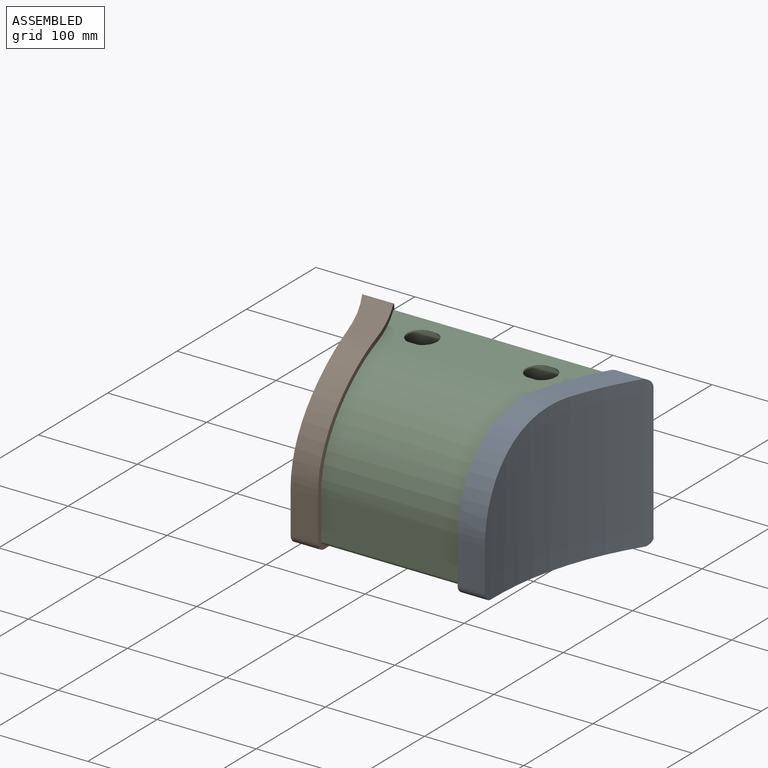
[diagram: assembled view]
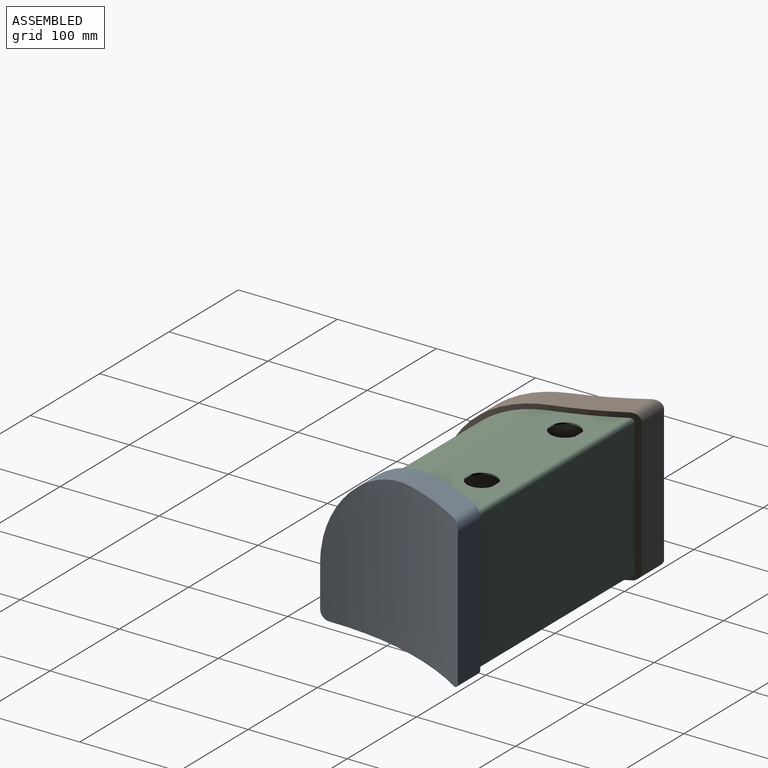
[diagram: assembled view, second angle]
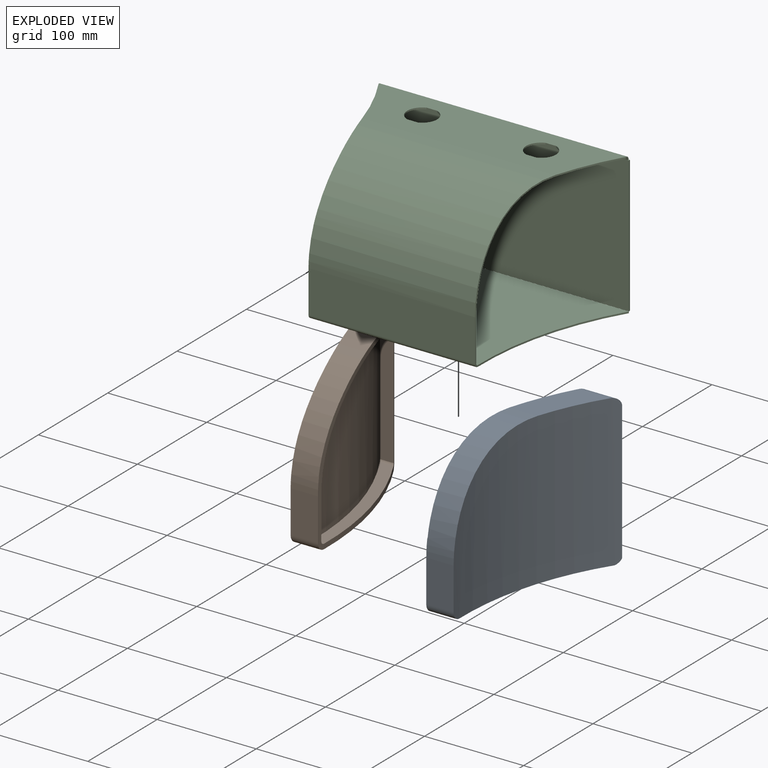
[diagram: exploded view]
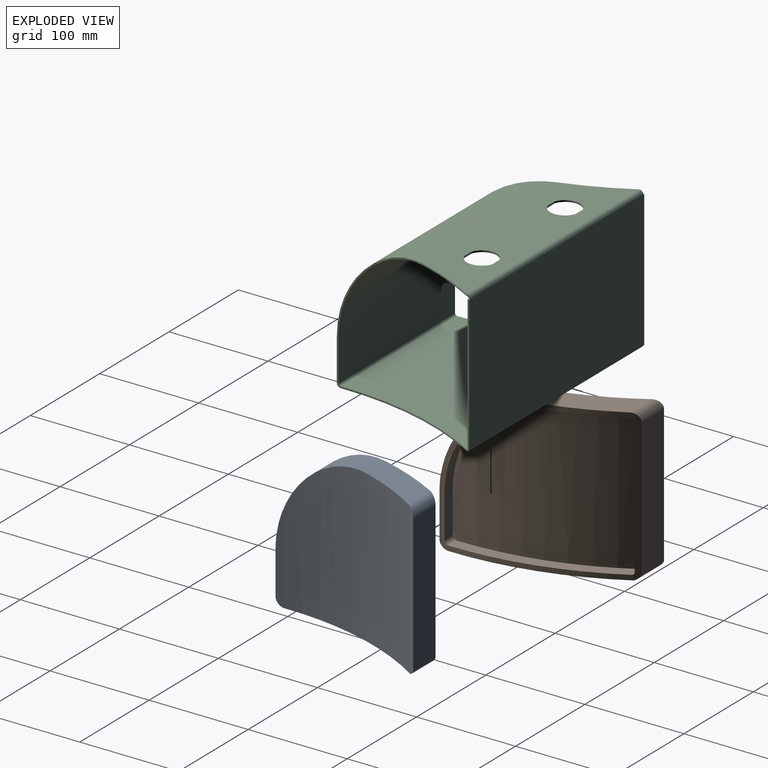
[diagram: exploded view, second angle]
ASSEMBLY  parts=3 mates=2
PART A: 21 faces, bbox 76.5x173.2x153.2 mm
  f0: cylinder r=8.9mm len=37.44mm, axis (1,0,0), area 448.3mm2, adj f11,f15,f19,f20
  f1: cylinder r=101.6mm len=101.6mm, axis (1,0,0), area 4395.6mm2, adj f11,f12,f13,f14,f19,f20
  f2: plane 62.7x40.05mm, normal (0,0,-1), area 820.3mm2, adj f4,f5,f10,f11
  f3: plane 157.68x54.18mm, normal (0,0,1), area 1979.6mm2, adj f6,f7,f10,f11
  f4: cylinder r=96.6mm len=96.6mm, axis (1,0,0), area 1837.1mm2, adj f2,f9,f10,f11
  f5: cylinder r=3.9mm len=16.12mm, axis (1,0,0), area 85mm2, adj f2,f8,f10,f11
  f6: cylinder r=3.9mm len=14.84mm, axis (1,0,0), area 32.3mm2, adj f3,f8,f10,f11
  f7: cylinder r=3.9mm len=12.08mm, axis (1,0,0), area 73.5mm2, adj f3,f9,f10,f11
  f8: plane 137.68x13.92mm, normal (0,-1,0), area 1916.4mm2, adj f5,f6,f10,f11
  f9: plane 42.7x12mm, normal (0,1,0), area 512.6mm2, adj f4,f7,f10,f11
  f10: cylinder r=300mm len=163.2mm, axis (0,0,1), area 22483.7mm2, adj f2,f3,f4,f5,f6,f7,f8,f9
  f11: cylinder r=312mm len=171.73mm, axis (0,0,1), area 3019.5mm2, adj f0,f1,f2,f3,f4,f5,f6,f7
  f12: plane 64.86x0.25mm, normal (0,1,0), area 16.2mm2, adj f1,f11,f14,f18
  f13: plane 42.7x27.6mm, normal (0,-1,0), area 1178.6mm2, adj f1,f14,f18,f20
  f14: plane 64.86x1.48mm, normal (-1,0,0), area 84.9mm2, adj f1,f12,f13,f18
  f15: plane 138.66x32.32mm, normal (0,1,0), area 4482mm2, adj f0,f11,f16,f20
  f16: cylinder r=8.9mm len=35.61mm, axis (1,0,0), area 265.8mm2, adj f11,f15,f17,f20
  f17: plane 158.66x72.75mm, normal (0,0,-1), area 4541.4mm2, adj f11,f16,f18,f20
  f18: cylinder r=8.9mm len=27.6mm, axis (1,0,0), area 382.6mm2, adj f11,f12,f13,f14,f17,f20
  f19: plane 62.7x57.89mm, normal (0,0,1), area 1873.6mm2, adj f0,f1,f11,f20
  f20: cylinder r=284.73mm len=173.2mm, axis (0,0,1), area 25780.6mm2, adj f0,f1,f13,f15,f16,f17,f18,f19
PART B: 21 faces, bbox 76.5x173.2x153.2 mm
  f0: cylinder r=8.9mm len=37.44mm, axis (-1,0,0), area 448.3mm2, adj f11,f15,f19,f20
  f1: cylinder r=101.6mm len=101.6mm, axis (-1,0,0), area 4395.7mm2, adj f11,f12,f13,f14,f19,f20
  f2: plane 62.7x40.05mm, normal (0,0,-1), area 820.3mm2, adj f4,f5,f10,f11
  f3: plane 157.68x54.18mm, normal (0,0,1), area 1979.6mm2, adj f6,f7,f10,f11
  f4: cylinder r=96.6mm len=96.6mm, axis (-1,0,0), area 1837.1mm2, adj f2,f9,f10,f11
  f5: cylinder r=3.9mm len=16.12mm, axis (-1,0,0), area 85mm2, adj f2,f8,f10,f11
  f6: cylinder r=3.9mm len=14.84mm, axis (-1,0,0), area 32.3mm2, adj f3,f8,f10,f11
  f7: cylinder r=3.9mm len=12.08mm, axis (-1,0,0), area 73.5mm2, adj f3,f9,f10,f11
  f8: plane 137.68x13.92mm, normal (0,-1,0), area 1916.4mm2, adj f5,f6,f10,f11
  f9: plane 42.7x12mm, normal (0,1,0), area 512.6mm2, adj f4,f7,f10,f11
  f10: cylinder r=300mm len=163.2mm, axis (0,0,1), area 22483.4mm2, adj f2,f3,f4,f5,f6,f7,f8,f9
  f11: cylinder r=312mm len=171.73mm, axis (0,0,1), area 3019.4mm2, adj f0,f1,f2,f3,f4,f5,f6,f7
  f12: plane 64.86x0.25mm, normal (0,1,0), area 16.2mm2, adj f1,f11,f14,f18
  f13: plane 42.7x27.6mm, normal (0,-1,0), area 1178.6mm2, adj f1,f14,f18,f20
  f14: plane 64.86x1.48mm, normal (1,0,0), area 84.9mm2, adj f1,f12,f13,f18
  f15: plane 138.66x32.32mm, normal (0,1,0), area 4482mm2, adj f0,f11,f16,f20
  f16: cylinder r=8.9mm len=35.61mm, axis (-1,0,0), area 265.8mm2, adj f11,f15,f17,f20
  f17: plane 158.66x72.75mm, normal (0,0,-1), area 4541.4mm2, adj f11,f16,f18,f20
  f18: cylinder r=8.9mm len=27.6mm, axis (-1,0,0), area 382.6mm2, adj f11,f12,f13,f14,f17,f20
  f19: plane 62.7x57.89mm, normal (0,0,1), area 1873.6mm2, adj f0,f1,f11,f20
  f20: cylinder r=284.73mm len=173.2mm, axis (0,0,1), area 25780.9mm2, adj f0,f1,f13,f15,f16,f17,f18,f19
PART C: 44 faces, bbox 252.4x163.2x143.2 mm
  f0: plane 1.6x1.36mm, normal (0,0,1), area 2.2mm2, adj f2,f5,f6,f41
  f1: plane 252.45x1.6mm, normal (0,0,-1), area 403.9mm2, adj f2,f4,f5,f6
  f2: plane 137.68x1.6mm, normal (-1,0,0), area 220.3mm2, adj f0,f1,f5,f6
  f3: plane 1.6x1.36mm, normal (0,0,1), area 2.2mm2, adj f4,f5,f6,f40
  f4: plane 137.68x1.6mm, normal (1,0,0), area 220.3mm2, adj f1,f3,f5,f6
  f5: plane 252.45x137.68mm, normal (0,1,0), area 34757.2mm2, adj f0,f1,f2,f3,f4,f42
  f6: plane 252.45x137.68mm, normal (0,-1,0), area 34757.2mm2, adj f0,f1,f2,f3,f4,f43
  f7: cylinder r=300mm len=157.68mm, axis (0,0,1), area 264.5mm2, adj f8,f10,f11,f37
  f8: plane 252.43x1.6mm, normal (0,1,0), area 403.9mm2, adj f7,f9,f10,f11
  f9: cylinder r=300mm len=157.68mm, axis (0,0,1), area 264.5mm2, adj f8,f10,f11,f36
  f10: plane 252.43x157.68mm, normal (0,0,-1), area 30684.5mm2, adj f7,f8,f9,f38
  f11: plane 252.43x157.68mm, normal (0,0,1), area 30684.5mm2, adj f7,f8,f9,f39
  f12: plane 10.77x1.6mm, normal (0,1,0), area 17.2mm2, adj f13,f21,f22,f23
  f13: cylinder r=15mm len=28mm, axis (0,0,1), area 57.8mm2, adj f12,f14,f22,f23
  f14: plane 10.77x1.6mm, normal (0,-1,0), area 17.2mm2, adj f13,f21,f22,f23
  f15: cylinder r=300mm len=62.7mm, axis (0,0,1), area 109.8mm2, adj f22,f23,f30,f41
  f16: cylinder r=15mm len=28mm, axis (0,0,1), area 57.8mm2, adj f17,f19,f22,f23
  f17: plane 10.77x1.6mm, normal (0,-1,0), area 17.2mm2, adj f16,f18,f22,f23
  f18: cylinder r=15mm len=28mm, axis (0,0,1), area 57.8mm2, adj f17,f19,f22,f23
  f19: plane 10.77x1.6mm, normal (0,1,0), area 17.2mm2, adj f16,f18,f22,f23
  f20: cylinder r=300mm len=62.7mm, axis (0,0,1), area 109.8mm2, adj f22,f23,f33,f40
  f21: cylinder r=15mm len=28mm, axis (0,0,1), area 57.8mm2, adj f12,f14,f22,f23
  f22: plane 249.74x62.7mm, normal (0,0,1), area 12369.6mm2, adj f12,f13,f14,f15,f16,f17,f18,f19
  f23: plane 249.74x62.7mm, normal (0,0,-1), area 12369.6mm2, adj f12,f13,f14,f15,f16,f17,f18,f19
  f24: plane 1.6x0.04mm, normal (0,0,-1), area 0.1mm2, adj f25,f28,f29,f37
  f25: plane 42.7x1.6mm, normal (-1,0,0), area 68.3mm2, adj f24,f28,f29,f31
  f26: plane 1.6x0.04mm, normal (0,0,-1), area 0.1mm2, adj f27,f28,f29,f36
  f27: plane 42.7x1.6mm, normal (1,0,0), area 68.3mm2, adj f26,f28,f29,f32
  f28: plane 168.21x42.7mm, normal (0,-1,0), area 7182.4mm2, adj f24,f25,f26,f27,f34,f38
  f29: plane 168.21x42.7mm, normal (0,1,0), area 7182.4mm2, adj f24,f25,f26,f27,f35,f39
  f30: bspline ~89.12x59.95mm, area 182.1mm2, adj f15,f31,f34,f35
  f31: bspline ~37.27x8.95mm, area 60.7mm2, adj f25,f30,f34,f35
  f32: bspline ~37.27x8.95mm, area 60.7mm2, adj f27,f33,f34,f35
  f33: bspline ~89.12x59.95mm, area 182.1mm2, adj f20,f32,f34,f35
  f34: cylinder r=96.6mm len=194.71mm, axis (-1,0,0), area 27016.4mm2, adj f22,f28,f30,f31,f32,f33
  f35: cylinder r=95mm len=194.71mm, axis (-1,0,0), area 26568.9mm2, adj f23,f29,f30,f31,f32,f33
  f36: plane 3.9x3.9mm, normal (1,0,0), area 7.8mm2, adj f9,f26,f38,f39
  f37: plane 3.9x3.9mm, normal (-1,0,0), area 7.8mm2, adj f7,f24,f38,f39
  f38: cylinder r=3.9mm len=168.12mm, axis (1,0,0), area 1029.9mm2, adj f10,f28,f36,f37
  f39: cylinder r=2.3mm len=168.12mm, axis (1,0,0), area 607.4mm2, adj f11,f29,f36,f37
  f40: plane 3.9x3.9mm, normal (1,0,0), area 7.8mm2, adj f3,f20,f42,f43
  f41: plane 3.9x3.9mm, normal (-1,0,0), area 7.8mm2, adj f0,f15,f42,f43
  f42: cylinder r=3.9mm len=249.74mm, axis (1,0,0), area 1529.9mm2, adj f5,f22,f40,f41
  f43: cylinder r=2.3mm len=249.74mm, axis (1,0,0), area 902.3mm2, adj f6,f23,f40,f41
PLACE A t=(-0.96,-81.58,1.6)mm
PLACE B t=(0.96,-79.98,1.6)mm
PLACE C t=(0,-79.98,1.6)mm
MATE fastened C.f6 <-> A.f8  axis (0,-1,0) through (126.22,0.02,70.46)mm
MATE fastened C.f5 <-> B.f8  axis (0,1,0) through (-126.22,1.62,70.46)mm
